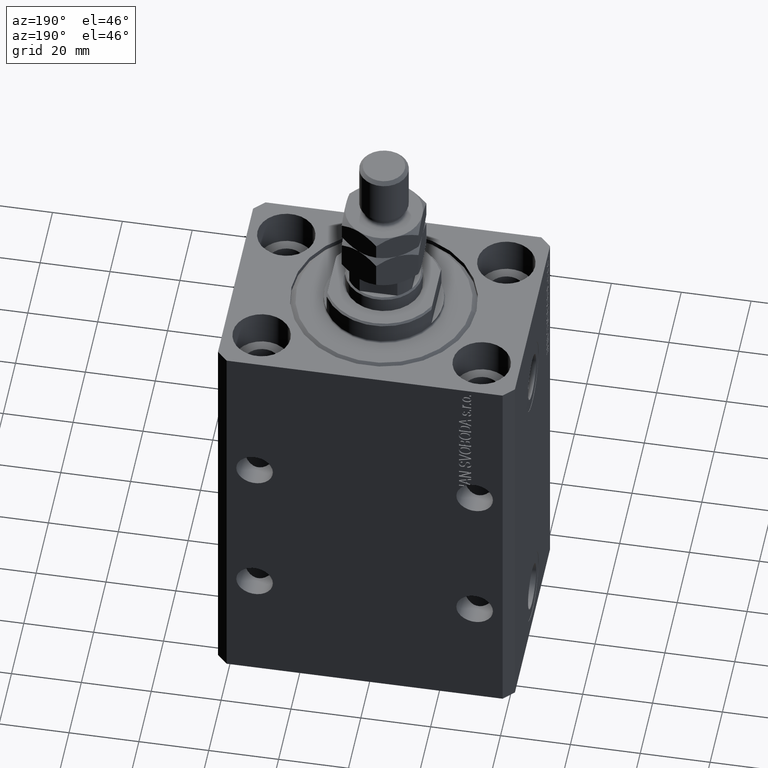
[diagram: clean part render]
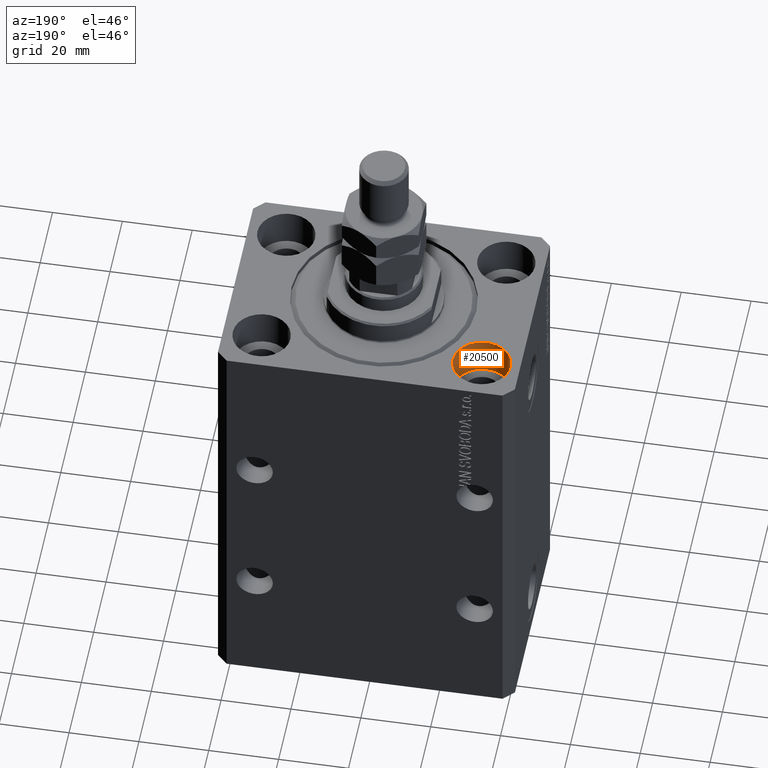
[diagram: same view with one face highlighted and labeled with its STEP entity id]
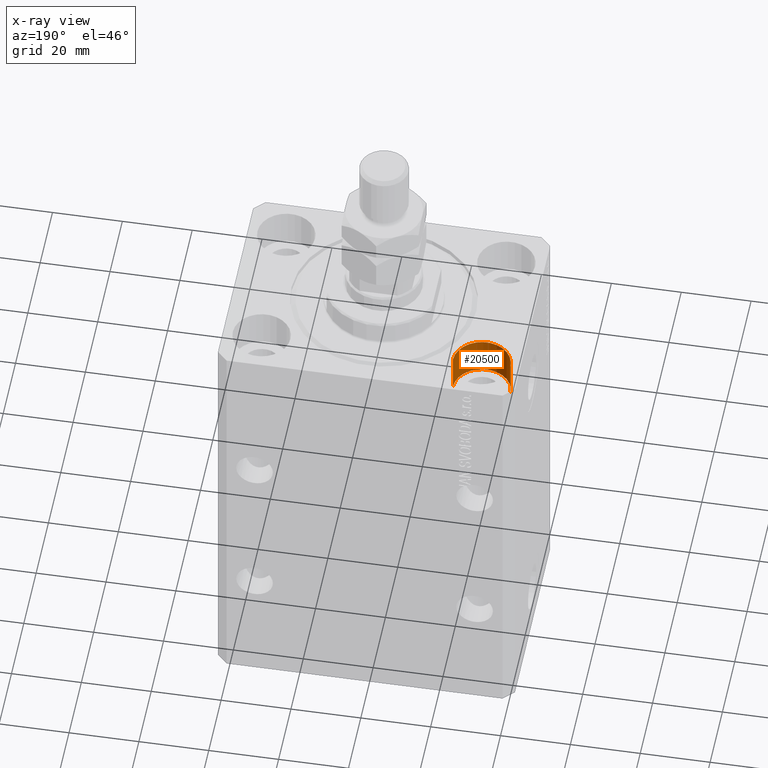
[diagram: x-ray of the same camera — body ghosted, the highlighted face saturated]
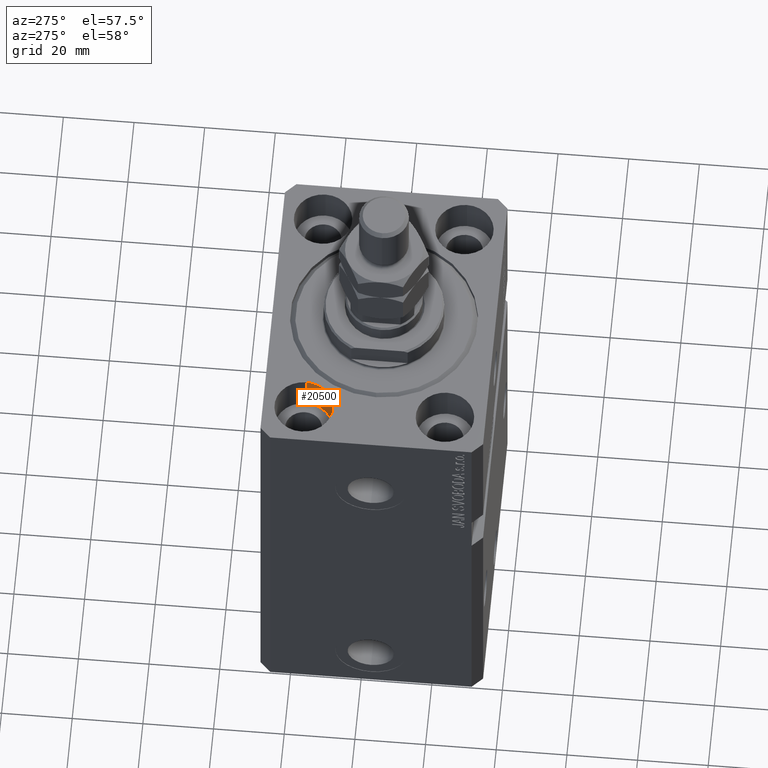
[diagram: same view with one face highlighted and labeled with its STEP entity id]
A machine part, auxiliary view. The second image highlights one B-rep face of the part: STEP entity #20500.
The next image is the same camera in x-ray: the body ghosted, the highlighted face saturated — about 0% of this face is hidden behind the body in this view.
A second angle (auxiliary view) of the same face is appended — the face is thin or edge-on in the first view.
In plain terms, the highlighted cylindrical surface (edge-blend (fillet) strip) has radius 8.25 mm, axis along (0, 0, 1).
Its self-contained STEP definition (entity closure, byte-faithful):
#1611 = EDGE_CURVE ( 'NONE', #18355, #36898, #7684, .T. ) ;
#1638 = LINE ( 'NONE', #37217, #1970 ) ;
#1970 = VECTOR ( 'NONE', #12316, 1000.000000000000000 ) ;
#2516 = ORIENTED_EDGE ( 'NONE', *, *, #12215, .T. ) ;
#4340 = VERTEX_POINT ( 'NONE', #12050 ) ;
#7684 = CIRCLE ( 'NONE', #46343, 8.250000000000000000 ) ;
#10920 = FACE_OUTER_BOUND ( 'NONE', #12239, .T. ) ;
#11024 = DIRECTION ( 'NONE',  ( 1.000000000000000000, 0.000000000000000000, 0.000000000000000000 ) ) ;
#12050 = CARTESIAN_POINT ( 'NONE',  ( -23.25000000000000000, 20.00000000000000000, 0.000000000000000000 ) ) ;
#12072 = CARTESIAN_POINT ( 'NONE',  ( -31.50000000000000000, 20.00000000000000000, 0.000000000000000000 ) ) ;
#12215 = EDGE_CURVE ( 'NONE', #29393, #4340, #45318, .T. ) ;
#12239 = EDGE_LOOP ( 'NONE', ( #45659, #19284, #2516, #20180 ) ) ;
#12316 = DIRECTION ( 'NONE',  ( -0.000000000000000000, -0.000000000000000000, 1.000000000000000000 ) ) ;
#12451 = CARTESIAN_POINT ( 'NONE',  ( -23.25000000000000000, 20.00000000000000000, -11.00000000000000000 ) ) ;
#14248 = DIRECTION ( 'NONE',  ( -0.000000000000000000, -0.000000000000000000, 1.000000000000000000 ) ) ;
#18355 = VERTEX_POINT ( 'NONE', #26046 ) ;
#19284 = ORIENTED_EDGE ( 'NONE', *, *, #35548, .T. ) ;
#19824 = LINE ( 'NONE', #27187, #29893 ) ;
#20180 = ORIENTED_EDGE ( 'NONE', *, *, #31790, .F. ) ;
#20500 = ADVANCED_FACE ( 'NONE', ( #10920 ), #25620, .F. ) ;
#21594 = CARTESIAN_POINT ( 'NONE',  ( -31.50000000000000000, 20.00000000000000000, -11.00000000000000000 ) ) ;
#25620 = CYLINDRICAL_SURFACE ( 'NONE', #44042, 8.250000000000000000 ) ;
#26046 = CARTESIAN_POINT ( 'NONE',  ( -39.75000000000000000, 20.00000000000000000, -11.00000000000000000 ) ) ;
#26552 = DIRECTION ( 'NONE',  ( 0.000000000000000000, 0.000000000000000000, 1.000000000000000000 ) ) ;
#27187 = CARTESIAN_POINT ( 'NONE',  ( -23.25000000000000000, 20.00000000000000000, -11.00000000000000000 ) ) ;
#29393 = VERTEX_POINT ( 'NONE', #43934 ) ;
#29893 = VECTOR ( 'NONE', #41656, 1000.000000000000000 ) ;
#31790 = EDGE_CURVE ( 'NONE', #36898, #4340, #19824, .T. ) ;
#31920 = DIRECTION ( 'NONE',  ( 0.000000000000000000, 0.000000000000000000, 1.000000000000000000 ) ) ;
#35548 = EDGE_CURVE ( 'NONE', #18355, #29393, #1638, .T. ) ;
#36898 = VERTEX_POINT ( 'NONE', #12451 ) ;
#37217 = CARTESIAN_POINT ( 'NONE',  ( -39.75000000000000000, 20.00000000000000000, -11.00000000000000000 ) ) ;
#39230 = AXIS2_PLACEMENT_3D ( 'NONE', #12072, #26552, #41022 ) ;
#40329 = DIRECTION ( 'NONE',  ( 1.000000000000000000, 0.000000000000000000, 0.000000000000000000 ) ) ;
#41022 = DIRECTION ( 'NONE',  ( 1.000000000000000000, 0.000000000000000000, 0.000000000000000000 ) ) ;
#41656 = DIRECTION ( 'NONE',  ( -0.000000000000000000, -0.000000000000000000, 1.000000000000000000 ) ) ;
#43934 = CARTESIAN_POINT ( 'NONE',  ( -39.75000000000000000, 20.00000000000000000, 0.000000000000000000 ) ) ;
#44042 = AXIS2_PLACEMENT_3D ( 'NONE', #21594, #14248, #40329 ) ;
#45318 = CIRCLE ( 'NONE', #39230, 8.250000000000000000 ) ;
#45659 = ORIENTED_EDGE ( 'NONE', *, *, #1611, .F. ) ;
#46343 = AXIS2_PLACEMENT_3D ( 'NONE', #46647, #31920, #11024 ) ;
#46647 = CARTESIAN_POINT ( 'NONE',  ( -31.50000000000000000, 20.00000000000000000, -11.00000000000000000 ) ) ;